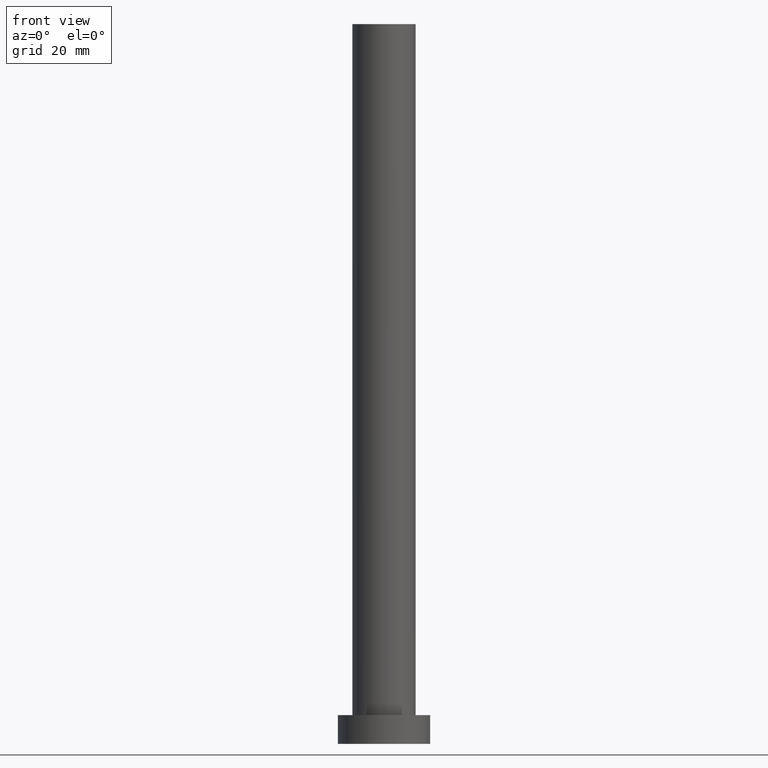
[diagram: clean part render]
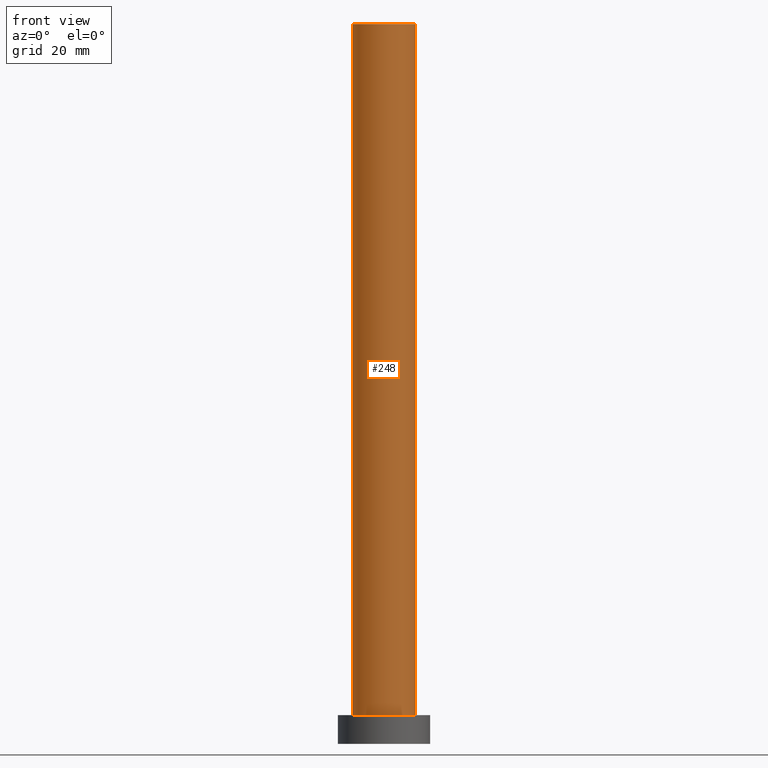
[diagram: same view with one face highlighted and labeled with its STEP entity id]
A machine part, front view. The second image highlights one B-rep face of the part: STEP entity #248.
In plain terms, the highlighted cylindrical surface (edge-blend (fillet) strip) has radius 5.5 mm, axis along (-0, -0, -1).
Its self-contained STEP definition (entity closure, byte-faithful):
#1 = DIRECTION ( 'NONE',  ( -0.000000000000000000, -0.000000000000000000, -1.000000000000000000 ) ) ;
#4 = VERTEX_POINT ( 'NONE', #14 ) ;
#11 = EDGE_CURVE ( 'NONE', #83, #214, #109, .T. ) ;
#14 = CARTESIAN_POINT ( 'NONE',  ( 5.500000000000000000, 6.735557395310442023E-16, 125.0000000000000000 ) ) ;
#15 = DIRECTION ( 'NONE',  ( 1.000000000000000000, 0.000000000000000000, 0.000000000000000000 ) ) ;
#17 = DIRECTION ( 'NONE',  ( -0.000000000000000000, -0.000000000000000000, -1.000000000000000000 ) ) ;
#30 = EDGE_CURVE ( 'NONE', #214, #140, #152, .T. ) ;
#41 = DIRECTION ( 'NONE',  ( 1.000000000000000000, 0.000000000000000000, 0.000000000000000000 ) ) ;
#58 = CARTESIAN_POINT ( 'NONE',  ( -5.500000000000000000, 0.000000000000000000, 125.0000000000000000 ) ) ;
#60 = CYLINDRICAL_SURFACE ( 'NONE', #106, 5.500000000000000000 ) ;
#62 = VECTOR ( 'NONE', #1, 1000.000000000000000 ) ;
#66 = CARTESIAN_POINT ( 'NONE',  ( 0.000000000000000000, 0.000000000000000000, 5.000000000000000000 ) ) ;
#75 = CARTESIAN_POINT ( 'NONE',  ( 0.000000000000000000, 0.000000000000000000, 125.0000000000000000 ) ) ;
#83 = VERTEX_POINT ( 'NONE', #58 ) ;
#99 = AXIS2_PLACEMENT_3D ( 'NONE', #75, #139, #41 ) ;
#100 = ORIENTED_EDGE ( 'NONE', *, *, #181, .F. ) ;
#106 = AXIS2_PLACEMENT_3D ( 'NONE', #235, #17, #154 ) ;
#109 = LINE ( 'NONE', #190, #119 ) ;
#110 = ORIENTED_EDGE ( 'NONE', *, *, #11, .T. ) ;
#119 = VECTOR ( 'NONE', #253, 1000.000000000000000 ) ;
#131 = ORIENTED_EDGE ( 'NONE', *, *, #30, .T. ) ;
#133 = EDGE_LOOP ( 'NONE', ( #100, #216, #110, #131 ) ) ;
#137 = CARTESIAN_POINT ( 'NONE',  ( -5.500000000000000000, 0.000000000000000000, 5.000000000000000000 ) ) ;
#139 = DIRECTION ( 'NONE',  ( 0.000000000000000000, 0.000000000000000000, 1.000000000000000000 ) ) ;
#140 = VERTEX_POINT ( 'NONE', #195 ) ;
#152 = CIRCLE ( 'NONE', #156, 5.500000000000000000 ) ;
#154 = DIRECTION ( 'NONE',  ( -1.000000000000000000, 0.000000000000000000, 0.000000000000000000 ) ) ;
#156 = AXIS2_PLACEMENT_3D ( 'NONE', #66, #217, #15 ) ;
#158 = FACE_OUTER_BOUND ( 'NONE', #133, .T. ) ;
#162 = LINE ( 'NONE', #182, #62 ) ;
#181 = EDGE_CURVE ( 'NONE', #4, #140, #162, .T. ) ;
#182 = CARTESIAN_POINT ( 'NONE',  ( 5.500000000000000000, 6.735557395310442023E-16, 125.0000000000000000 ) ) ;
#190 = CARTESIAN_POINT ( 'NONE',  ( -5.500000000000000000, 0.000000000000000000, 125.0000000000000000 ) ) ;
#192 = EDGE_CURVE ( 'NONE', #83, #4, #219, .T. ) ;
#195 = CARTESIAN_POINT ( 'NONE',  ( 5.500000000000000000, 6.735557395310442023E-16, 5.000000000000000000 ) ) ;
#214 = VERTEX_POINT ( 'NONE', #137 ) ;
#216 = ORIENTED_EDGE ( 'NONE', *, *, #192, .F. ) ;
#217 = DIRECTION ( 'NONE',  ( 0.000000000000000000, 0.000000000000000000, 1.000000000000000000 ) ) ;
#219 = CIRCLE ( 'NONE', #99, 5.500000000000000000 ) ;
#235 = CARTESIAN_POINT ( 'NONE',  ( 0.000000000000000000, 0.000000000000000000, 125.0000000000000000 ) ) ;
#248 = ADVANCED_FACE ( 'NONE', ( #158 ), #60, .T. ) ;
#253 = DIRECTION ( 'NONE',  ( -0.000000000000000000, -0.000000000000000000, -1.000000000000000000 ) ) ;